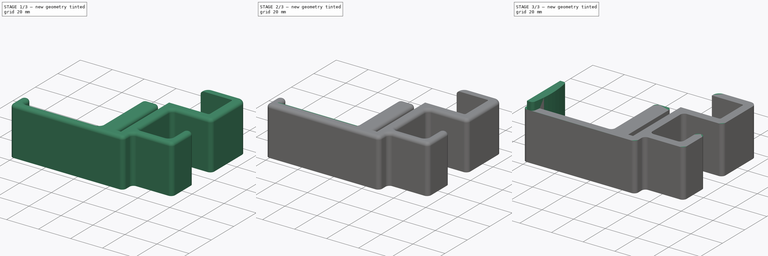
[diagram: build sequence overview — one tinted view per stage of 3, left to right]
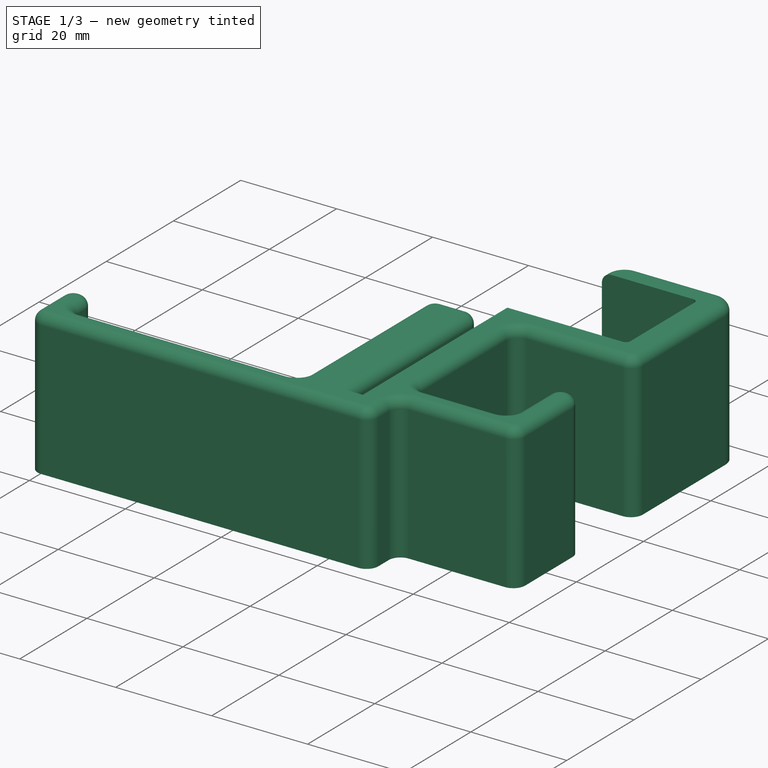
[diagram: stage 1 of 3 — iso view after this stage's code; geometry added in this stage tinted green]
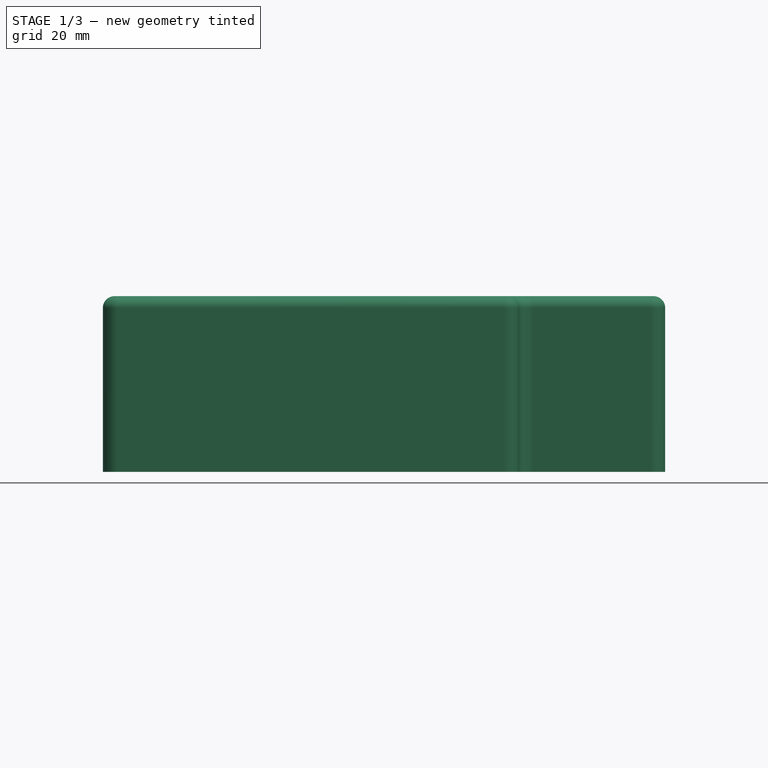
[diagram: stage 1 of 3 — front view after this stage's code; geometry added in this stage tinted green]
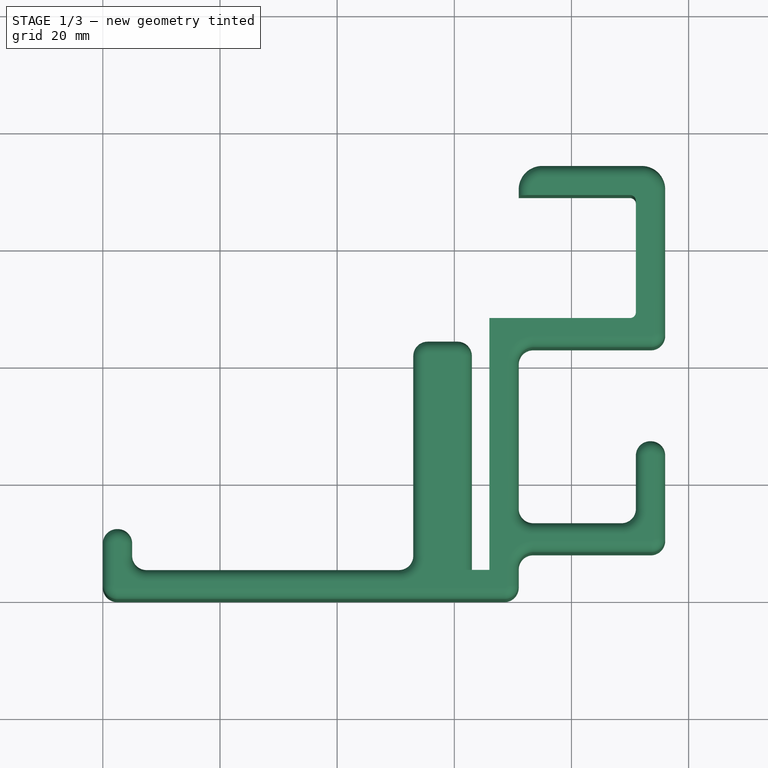
[diagram: stage 1 of 3 — top view after this stage's code; geometry added in this stage tinted green]
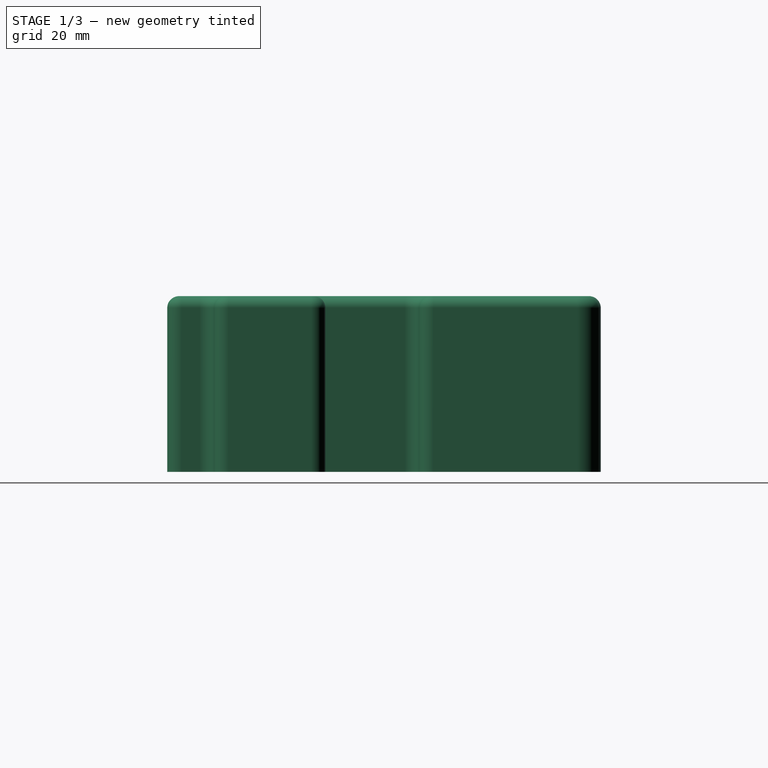
[diagram: stage 1 of 3 — right view after this stage's code; geometry added in this stage tinted green]
FCSTD DOCUMENT  (FreeCAD 0.19R24276 (Git))
Label: fully_jarvis_headphone_hook_bfs
License: All rights reserved
LicenseURL: http://en.wikipedia.org/wiki/All_rights_reserved
objects: PartDesign::Fillet×4, Sketcher::SketchObject×3, PartDesign::Pad×3, App::MeasureDistance×2, PartDesign::Body×1
note: 18 computed .brp shape members not serialized (recipe doc carries the construction recipe); baked Part::Feature solids carry a one-line shape summary decoded from their .brp

FEATURE [Sketcher::SketchObject] Sketch
  FullyConstrained = true
  MapMode = 5
  Support = -> [XY_Plane]
  sketch-geometry (44):
    g0: LineSegment StartX=71 StartY=69 StartZ=0 EndX=90 EndY=69 EndZ=0
    g1: LineSegment StartX=91 StartY=68 StartZ=0 EndX=91 EndY=49 EndZ=0
    g2: LineSegment StartX=90 StartY=48 StartZ=0 EndX=66 EndY=48 EndZ=0
    g3: LineSegment StartX=66 StartY=48 StartZ=0 EndX=66 EndY=5 EndZ=0
    g4: LineSegment StartX=50.55 StartY=5 StartZ=0 EndX=7.45 EndY=5 EndZ=0
    g5: LineSegment StartX=0 StartY=9.55 StartZ=0 EndX=0 EndY=2.45 EndZ=0
    g6: LineSegment StartX=2.45 StartY=0 StartZ=0 EndX=68.55 EndY=0 EndZ=0
    g7: LineSegment StartX=71 StartY=2.45 StartZ=0 EndX=71 EndY=5.55 EndZ=0
    g8: LineSegment StartX=73.45 StartY=8 StartZ=0 EndX=93.55 EndY=8 EndZ=0
    g9: LineSegment StartX=96 StartY=10.45 StartZ=0 EndX=96 EndY=24.55 EndZ=0
    g10: LineSegment StartX=88.55 StartY=13 StartZ=0 EndX=73.45 EndY=13 EndZ=0
    g11: LineSegment StartX=71 StartY=15.45 StartZ=0 EndX=71 EndY=40.55 EndZ=0
    g12: LineSegment StartX=73.45 StartY=43 StartZ=0 EndX=93.55 EndY=43 EndZ=0
    g13: LineSegment StartX=96 StartY=45.45 StartZ=0 EndX=96 EndY=70 EndZ=0
    g14: LineSegment StartX=92 StartY=74 StartZ=0 EndX=75 EndY=74 EndZ=0
    g15: LineSegment StartX=71 StartY=70 StartZ=0 EndX=71 EndY=69 EndZ=0
    g16: LineSegment StartX=5 StartY=7.45 StartZ=0 EndX=5 EndY=9.55 EndZ=0
    g17: LineSegment StartX=91 StartY=15.45 StartZ=0 EndX=91 EndY=24.55 EndZ=0
    g18: LineSegment StartX=93.45 StartY=27 StartZ=0 EndX=93.55 EndY=27 EndZ=0
    g19: LineSegment StartX=63 StartY=5 StartZ=0 EndX=63 EndY=41.55 EndZ=0
    g20: LineSegment StartX=60.55 StartY=44 StartZ=0 EndX=55.45 EndY=44 EndZ=0
    g21: LineSegment StartX=53 StartY=41.55 StartZ=0 EndX=53 EndY=7.45 EndZ=0
    g22: LineSegment StartX=63 StartY=5 StartZ=0 EndX=66 EndY=5 EndZ=0
    g23: ArcOfCircle CenterX=68.55 CenterY=2.45 CenterZ=0 NormalX=0 NormalY=0 NormalZ=1 AngleXU=0 Radius=2.45 StartAngle=4.71239 EndAngle=6.28319
    g24: ArcOfCircle CenterX=2.45 CenterY=2.45 CenterZ=0 NormalX=0 NormalY=0 NormalZ=1 AngleXU=0 Radius=2.45 StartAngle=3.14159 EndAngle=4.71239
    g25: ArcOfCircle CenterX=7.45 CenterY=7.45 CenterZ=0 NormalX=0 NormalY=0 NormalZ=1 AngleXU=0 Radius=2.45 StartAngle=3.14159 EndAngle=4.71239
    g26: ArcOfCircle CenterX=50.55 CenterY=7.45 CenterZ=0 NormalX=0 NormalY=0 NormalZ=1 AngleXU=0 Radius=2.45 StartAngle=4.71239 EndAngle=6.28319
    g27: ArcOfCircle CenterX=55.45 CenterY=41.55 CenterZ=0 NormalX=0 NormalY=0 NormalZ=1 AngleXU=0 Radius=2.45 StartAngle=1.5708 EndAngle=3.14159
    g28: ArcOfCircle CenterX=75 CenterY=70 CenterZ=0 NormalX=0 NormalY=0 NormalZ=1 AngleXU=0 Radius=4 StartAngle=1.5708 EndAngle=3.14159
    g29: ArcOfCircle CenterX=92 CenterY=70 CenterZ=0 NormalX=0 NormalY=0 NormalZ=1 AngleXU=0 Radius=4 StartAngle=1e-15 EndAngle=1.5708
    g30: ArcOfCircle CenterX=93.55 CenterY=45.45 CenterZ=0 NormalX=0 NormalY=0 NormalZ=1 AngleXU=0 Radius=2.45 StartAngle=4.71239 EndAngle=6.28319
    g31: ArcOfCircle CenterX=73.45 CenterY=40.55 CenterZ=0 NormalX=0 NormalY=0 NormalZ=1 AngleXU=0 Radius=2.45 StartAngle=1.5708 EndAngle=3.14159
    g32: ArcOfCircle CenterX=73.45 CenterY=15.45 CenterZ=0 NormalX=0 NormalY=0 NormalZ=1 AngleXU=0 Radius=2.45 StartAngle=3.14159 EndAngle=4.71239
    g33: ArcOfCircle CenterX=88.55 CenterY=15.45 CenterZ=0 NormalX=0 NormalY=0 NormalZ=1 AngleXU=0 Radius=2.45 StartAngle=4.71239 EndAngle=6.28319
    g34: ArcOfCircle CenterX=93.45 CenterY=24.55 CenterZ=0 NormalX=0 NormalY=0 NormalZ=1 AngleXU=0 Radius=2.45 StartAngle=1.5708 EndAngle=3.14159
    g35: ArcOfCircle CenterX=93.55 CenterY=24.55 CenterZ=0 NormalX=0 NormalY=0 NormalZ=1 AngleXU=0 Radius=2.45 StartAngle=2e-16 EndAngle=1.5708
    g36: ArcOfCircle CenterX=93.55 CenterY=10.45 CenterZ=0 NormalX=0 NormalY=0 NormalZ=1 AngleXU=0 Radius=2.45 StartAngle=4.71239 EndAngle=6.28319
    g37: ArcOfCircle CenterX=73.45 CenterY=5.55 CenterZ=0 NormalX=0 NormalY=0 NormalZ=1 AngleXU=0 Radius=2.45 StartAngle=1.5708 EndAngle=3.14159
    g38: LineSegment StartX=2.45 StartY=12 StartZ=0 EndX=2.55 EndY=12 EndZ=0
    g39: ArcOfCircle CenterX=60.55 CenterY=41.55 CenterZ=0 NormalX=0 NormalY=0 NormalZ=1 AngleXU=0 Radius=2.45 StartAngle=0 EndAngle=1.5708
    g40: ArcOfCircle CenterX=2.45 CenterY=9.55 CenterZ=0 NormalX=0 NormalY=0 NormalZ=1 AngleXU=0 Radius=2.45 StartAngle=1.5708 EndAngle=3.14159
    g41: ArcOfCircle CenterX=2.55 CenterY=9.55 CenterZ=0 NormalX=0 NormalY=0 NormalZ=1 AngleXU=0 Radius=2.45 StartAngle=0 EndAngle=1.5708
    g42: ArcOfCircle CenterX=90 CenterY=68 CenterZ=0 NormalX=0 NormalY=0 NormalZ=1 AngleXU=0 Radius=1 StartAngle=1.6e-15 EndAngle=1.5708
    g43: ArcOfCircle CenterX=90 CenterY=49 CenterZ=0 NormalX=0 NormalY=0 NormalZ=1 AngleXU=0 Radius=1 StartAngle=4.71239 EndAngle=6.28319
  constraints (112):
    c: Horizontal(g14)
    c: Horizontal(g0)
    c: Horizontal(g2)
    c: Horizontal(g12)
    c: Horizontal(g10)
    c: Horizontal(g8)
    c: Horizontal(g4)
    c: Horizontal(g6)
    c: Vertical(g5)
    c: Vertical(g16)
    c: Vertical(g3)
    c: Vertical(g9)
    c: Vertical(g11)
    c: Vertical(g1)
    c: Vertical(g13)
    c: Vertical(g15)
    c: Coincident(g15,g0)
    c: Coincident(g3,g2)
    c: Horizontal(g18)
    c: Vertical(g17)
    c: Vertical(g21)
    c: Vertical(g19)
    c: Horizontal(g20)
    c: Vertical(g7)
    c: Horizontal(g22)
    c: Coincident(g22,g19)
    c: Coincident(g22,g3)
    c: DistanceX(g22,g22) = 3
    c: DistanceY(g3,g3) = 43
    c: Tangent(g7,g23) = -1.5708
    c: Tangent(g6,g23) = -1.5708
    c: Tangent(g5,g24) = -1.5708
    c: Tangent(g6,g24) = -1.5708
    c: Tangent(g16,g25) = 1.5708
    c: Tangent(g4,g25) = 1.5708
    c: Tangent(g4,g26) = 1.5708
    c: Tangent(g21,g26) = 1.5708
    c: Tangent(g21,g27) = -1.5708
    c: Tangent(g20,g27) = -1.5708
    c: Tangent(g15,g28) = -1.5708
    c: Tangent(g14,g28) = -1.5708
    c: Tangent(g14,g29) = -1.5708
    c: Tangent(g13,g29) = -1.5708
    c: Tangent(g13,g30) = -1.5708
    c: Tangent(g12,g30) = -1.5708
    c: Tangent(g12,g31) = 1.5708
    c: Tangent(g11,g31) = 1.5708
    c: Tangent(g11,g32) = 1.5708
    c: Tangent(g10,g32) = 1.5708
    c: Tangent(g10,g33) = 1.5708
    c: Tangent(g17,g33) = -1.5708
    c: Tangent(g17,g34) = 1.5708
    c: Tangent(g18,g34) = 1.5708
    c: Tangent(g18,g35) = 1.5708
    c: Tangent(g9,g35) = -1.5708
    c: Tangent(g9,g36) = -1.5708
    c: Tangent(g8,g36) = -1.5708
    c: Tangent(g8,g37) = 1.5708
    c: Tangent(g7,g37) = 1.5708
    c: DistanceY(g6,g-1) = 0
    c: DistanceX(g5,g-1) = 0
    c: Radius(g24) = 2.45
    c: Equal(g24,g25)
    c: Equal(g24,g26)
    c: Equal(g24,g27)
    c: Equal(g24,g23)
    c: Equal(g24,g37)
    c: Equal(g24,g36)
    c: Equal(g24,g35)
    c: Equal(g24,g33)
    c: Equal(g24,g32)
    c: Equal(g24,g34)
    c: Equal(g24,g31)
    c: Equal(g24,g30)
    c: Radius(g28) = 4
    c: Equal(g28,g29)
    c: Tangent(g20,g39) = -1.5708
    c: Tangent(g19,g39) = -1.5708
    c: Equal(g27,g39)
    c: DistanceY(g20,g2) = 4
    c: Tangent(g5,g40) = -1.5708
    c: Tangent(g38,g40) = 1.5708
    c: Tangent(g38,g41) = 1.5708
    c: Tangent(g16,g41) = -1.5708
    c: Equal(g24,g40)
    c: Equal(g24,g41)
    c: Horizontal(g38)
    c: DistanceX(g5,g16) = 5
    c: DistanceY(g4,g38) = 7
    c: DistanceY(g6,g4) = 5
    c: DistanceX(g21,g19) = 10
    c: Tangent(g0,g42) = 1.5708
    c: Tangent(g1,g42) = 1.5708
    c: Tangent(g1,g43) = 1.5708
    c: Tangent(g2,g43) = 1.5708
    c: Radius(g42) = 1
    c: Equal(g42,g43)
    c: DistanceY(g0,g14) = 5
    c: DistanceX(g1,g13) = 5
    c: DistanceY(g12,g2) = 5
    c: DistanceX(g2,g11) = 5
    c: DistanceY(g8,g10) = 5
    c: DistanceX(g3,g7) = 5
    c: DistanceX(g17,g9) = 5
    c: DistanceY(g6,g3) = 5
    c: DistanceX(g16,g21) = 48
    c: DistanceY(g2,g0) = 21
    c: DistanceX(g2,g1) = 25
    c: DistanceX(g0,g1) = 20
    c: DistanceX(g11,g17) = 20
    c: DistanceY(g10,g18) = 14
    c: DistanceY(g6,g8) = 8
FEATURE [PartDesign::Pad] Pad  label="Main"
  AllowMultiFace = false
  Direction = (1,1,1)
  Length = 30
  Length2 = 100
  Profile = -> Sketch
  Type = 0
FEATURE [PartDesign::Fillet] Fillet002
  Base = -> Pad [Edge16]
  BaseFeature = -> Pad
  Radius = 2
  SupportTransform = false
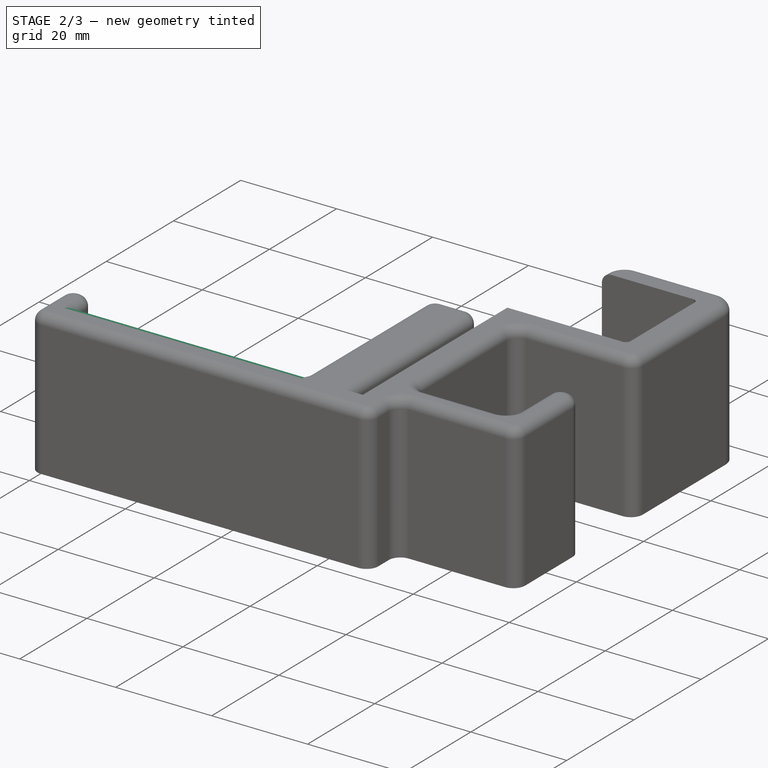
[diagram: stage 2 of 3 — iso view after this stage's code; geometry added in this stage tinted green]
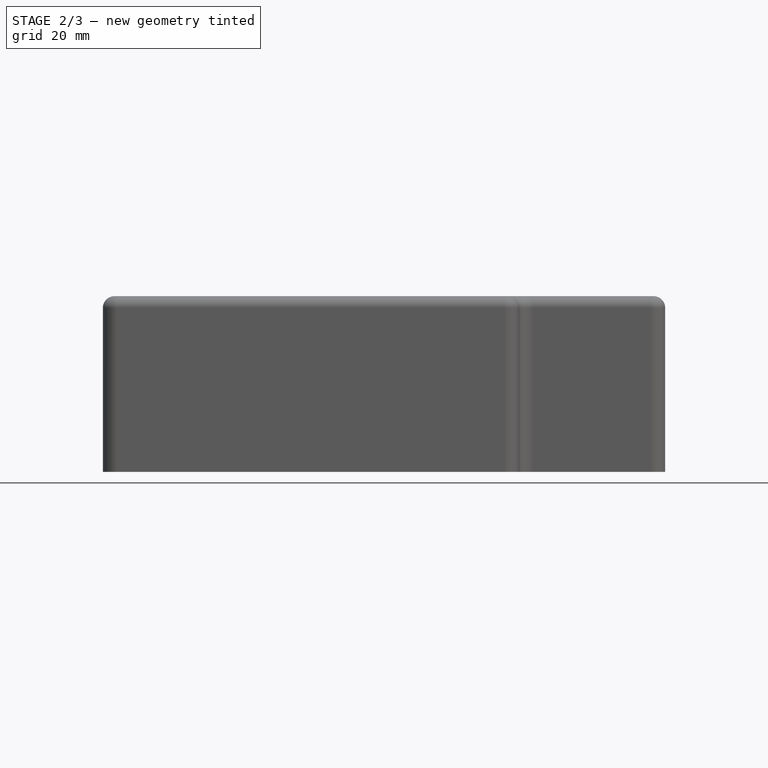
[diagram: stage 2 of 3 — front view after this stage's code; geometry added in this stage tinted green]
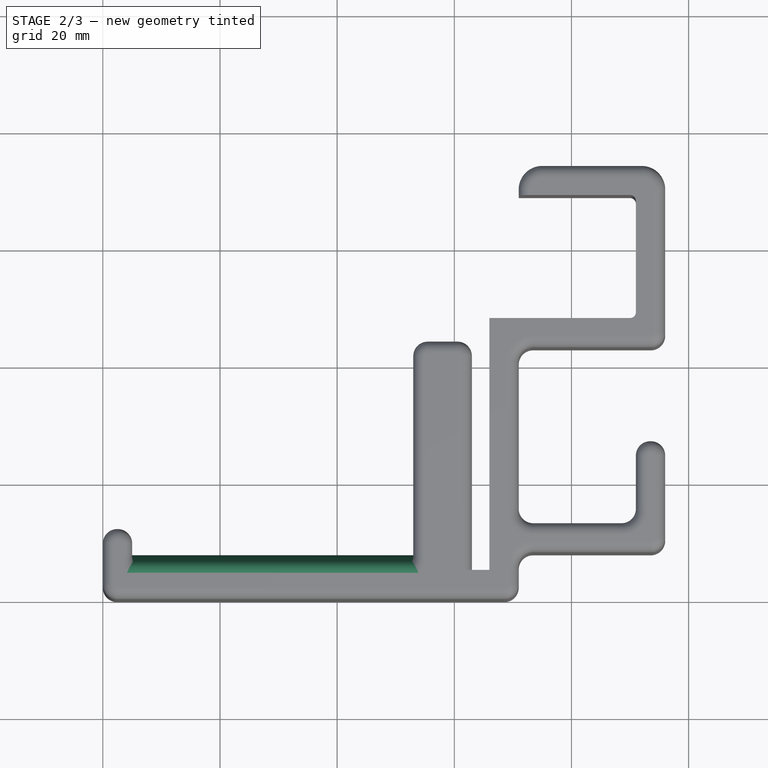
[diagram: stage 2 of 3 — top view after this stage's code; geometry added in this stage tinted green]
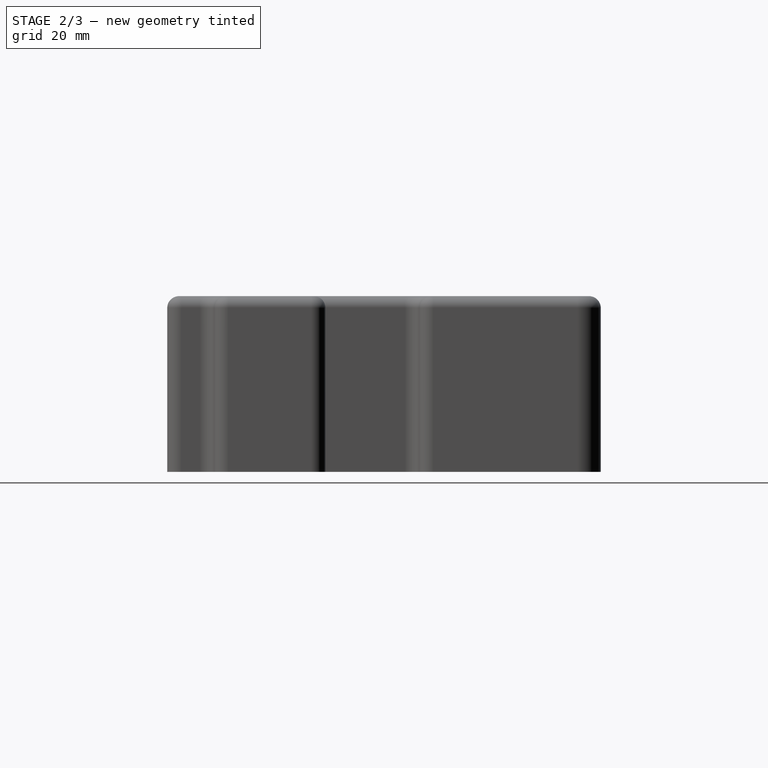
[diagram: stage 2 of 3 — right view after this stage's code; geometry added in this stage tinted green]
FEATURE [PartDesign::Fillet] Fillet003
  Base = -> Fillet002 [Edge14]
  BaseFeature = -> Fillet002
  Radius = 2
  SupportTransform = false
FEATURE [PartDesign::Fillet] Fillet
  Base = -> Pad [Edge10]
  BaseFeature = -> Pad
  Radius = 2
  SupportTransform = false
FEATURE [Sketcher::SketchObject] Sketch002
  FullyConstrained = true
  Placement = pos=(4,0,0) rot=(0.57735,0.57735,0.57735;2.0944rad)
  sketch-geometry (6):
    g0: ArcOfCircle CenterX=-62.2458 CenterY=15 CenterZ=0 NormalX=0 NormalY=0 NormalZ=1 AngleXU=0 Radius=70 StartAngle=6.09082 EndAngle=6.47555
    g1: LineSegment StartX=4.5 StartY=30 StartZ=0 EndX=2.5 EndY=30 EndZ=0
    g2: LineSegment StartX=2.5 StartY=30 StartZ=0 EndX=2.5 EndY=0 EndZ=0
    g3: LineSegment StartX=2.5 StartY=0 StartZ=0 EndX=4.5 EndY=0 EndZ=0
    g4: ArcOfCircle CenterX=4.5 CenterY=28 CenterZ=0 NormalX=0 NormalY=0 NormalZ=1 AngleXU=0 Radius=2 StartAngle=0.192361 EndAngle=1.5708
    g5: ArcOfCircle CenterX=4.5 CenterY=2 CenterZ=0 NormalX=0 NormalY=0 NormalZ=1 AngleXU=0 Radius=2 StartAngle=4.71239 EndAngle=6.09082
  constraints (17):
    c: Radius(g0) = 70
    c: Vertical(g2)
    c: Horizontal(g1)
    c: Coincident(g2,g1)
    c: Coincident(g3,g2)
    c: DistanceX(g-1,g2) = 2.5
    c: Distance(g2) = 30
    c: Tangent(g0,g4) = -1.5708
    c: Tangent(g1,g4) = -1.5708
    c: Tangent(g0,g5) = -1.5708
    c: Tangent(g3,g5) = -1.5708
    c: Equal(g5,g4)
    c: Radius(g4) = 2
    c: Distance(g1) = 2
    c: Equal(g3,g1)
    c: Parallel(g3,g1)
    c: DistanceY(g-1,g2) = 0
FEATURE [PartDesign::Pad] Pad002
  AllowMultiFace = false
  BaseFeature = -> Fillet003
  Direction = (1,1,1)
  Length = 50
  Length2 = 100
  Profile = -> Sketch002
  Type = 0
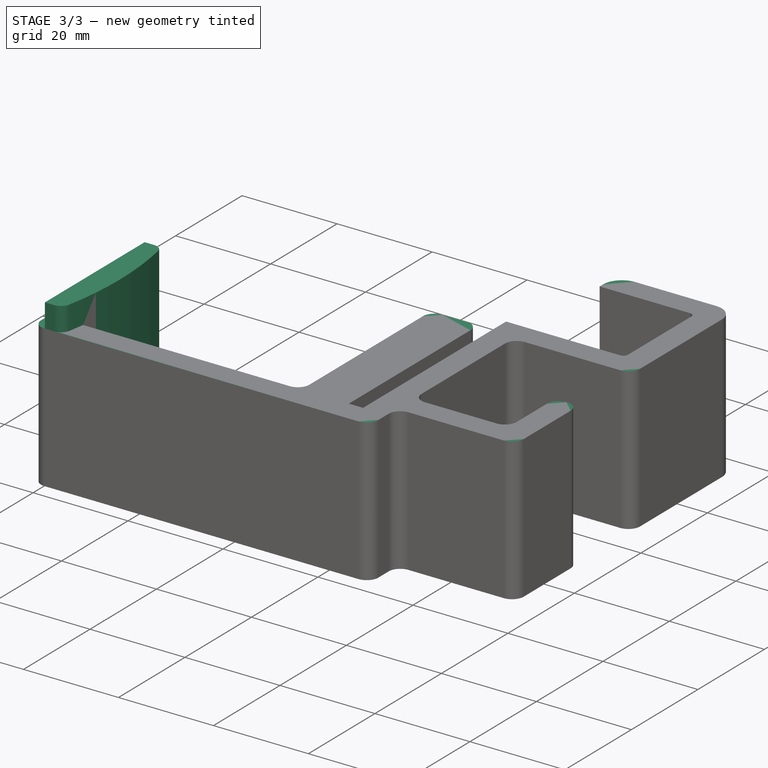
[diagram: stage 3 of 3 — iso view after this stage's code; geometry added in this stage tinted green]
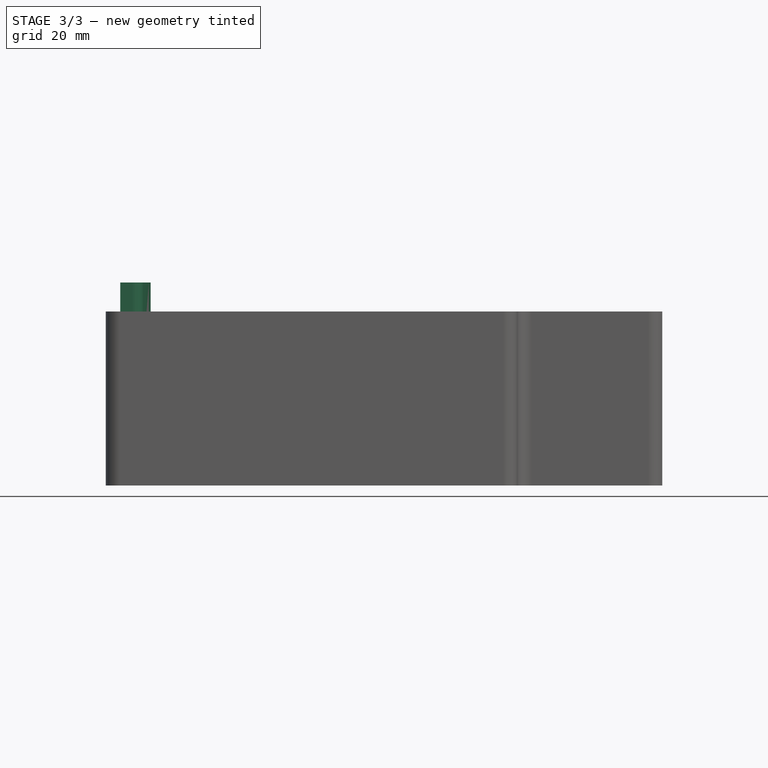
[diagram: stage 3 of 3 — front view after this stage's code; geometry added in this stage tinted green]
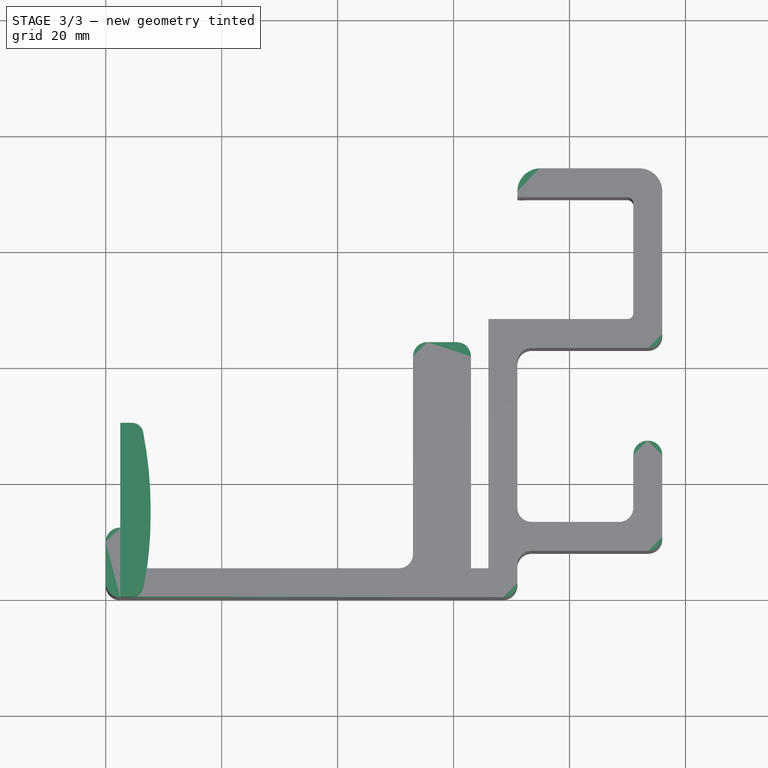
[diagram: stage 3 of 3 — top view after this stage's code; geometry added in this stage tinted green]
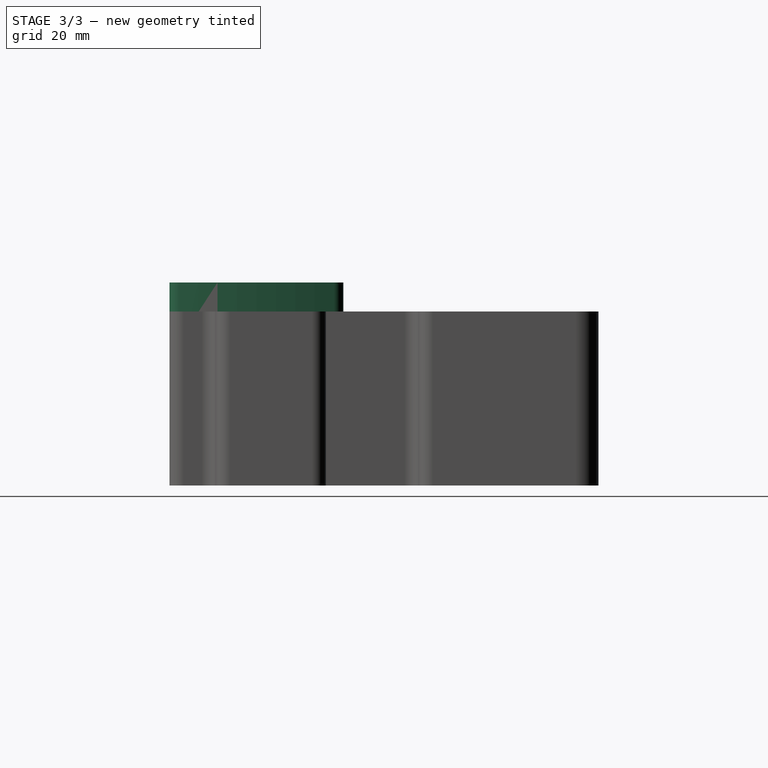
[diagram: stage 3 of 3 — right view after this stage's code; geometry added in this stage tinted green]
FEATURE [PartDesign::Fillet] Fillet001
  Base = -> Fillet [Face4]
  BaseFeature = -> Fillet
  Radius = 2
  SupportTransform = false
FEATURE [Sketcher::SketchObject] Sketch001
  FullyConstrained = true
  MapMode = 45
  Support = -> [Pad002,Sketch002]
  sketch-geometry (6):
    g0: ArcOfCircle CenterX=-62.2458 CenterY=15 CenterZ=0 NormalX=0 NormalY=0 NormalZ=1 AngleXU=0 Radius=70 StartAngle=6.09082 EndAngle=6.47555
    g1: LineSegment StartX=4.5 StartY=30 StartZ=0 EndX=2.5 EndY=30 EndZ=0
    g2: LineSegment StartX=2.5 StartY=30 StartZ=0 EndX=2.5 EndY=0 EndZ=0
    g3: LineSegment StartX=2.5 StartY=0 StartZ=0 EndX=4.5 EndY=0 EndZ=0
    g4: ArcOfCircle CenterX=4.5 CenterY=28 CenterZ=0 NormalX=0 NormalY=0 NormalZ=1 AngleXU=0 Radius=2 StartAngle=0.192361 EndAngle=1.5708
    g5: ArcOfCircle CenterX=4.5 CenterY=2 CenterZ=0 NormalX=0 NormalY=0 NormalZ=1 AngleXU=0 Radius=2 StartAngle=4.71239 EndAngle=6.09082
  constraints (17):
    c: Radius(g0) = 70
    c: Vertical(g2)
    c: Horizontal(g1)
    c: Coincident(g2,g1)
    c: Coincident(g3,g2)
    c: DistanceX(g-1,g2) = 2.5
    c: Distance(g2) = 30
    c: Tangent(g0,g4) = -1.5708
    c: Tangent(g1,g4) = -1.5708
    c: Tangent(g0,g5) = -1.5708
    c: Tangent(g3,g5) = -1.5708
    c: Equal(g5,g4)
    c: Radius(g4) = 2
    c: Distance(g1) = 2
    c: Equal(g3,g1)
    c: Parallel(g3,g1)
    c: DistanceY(g-1,g2) = 0
FEATURE [PartDesign::Pad] Pad001  label="LowerCurve"
  AllowMultiFace = false
  BaseFeature = -> Pad
  Direction = (1,1,1)
  Length = 35
  Length2 = 100
  Profile = -> Sketch001
  Type = 0
FEATURE [PartDesign::Body] Body
  Group = -> [Sketch,Pad,Sketch001,Pad001,Fillet,Fillet001,Fillet002,Fillet003,Sketch002,Pad002]
  Origin = -> Origin
  Tip = -> Pad002
FEATURE [App::MeasureDistance] Distance  label="Distance: 65.70 mm"
  Distance = 65.6989
  P1 = (3.16183,0,9.88286)
  P2 = (68.55,-4e-16,16.265)
FEATURE [App::MeasureDistance] Distance001  label="Distance: 48.18 mm"
  Distance = 48.1769
  P1 = (5.52081,5.09015,29.9002)
  P2 = (53.6973,4.89822,29.96)
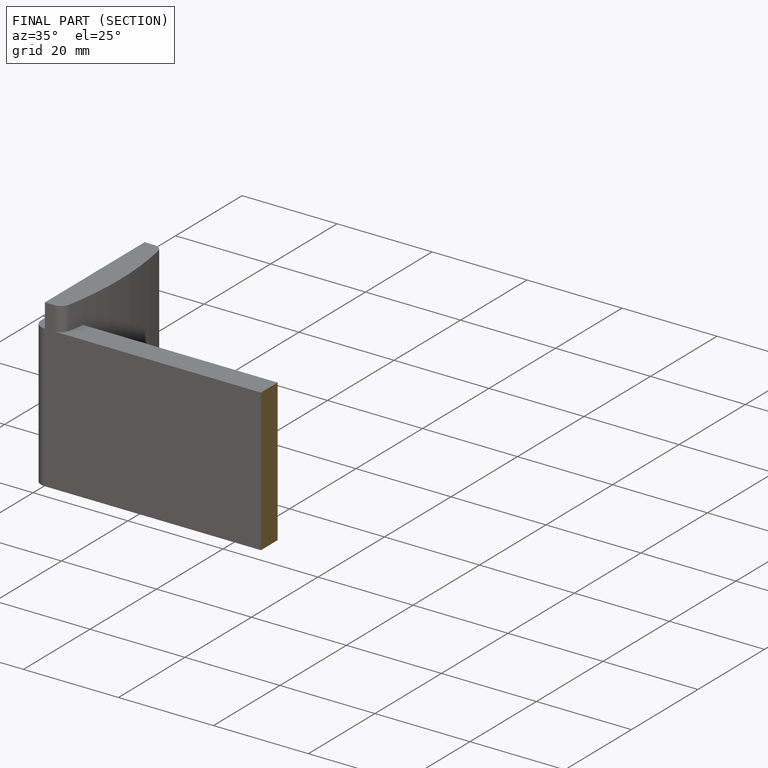
[diagram: finished part — half-section view (interior)]
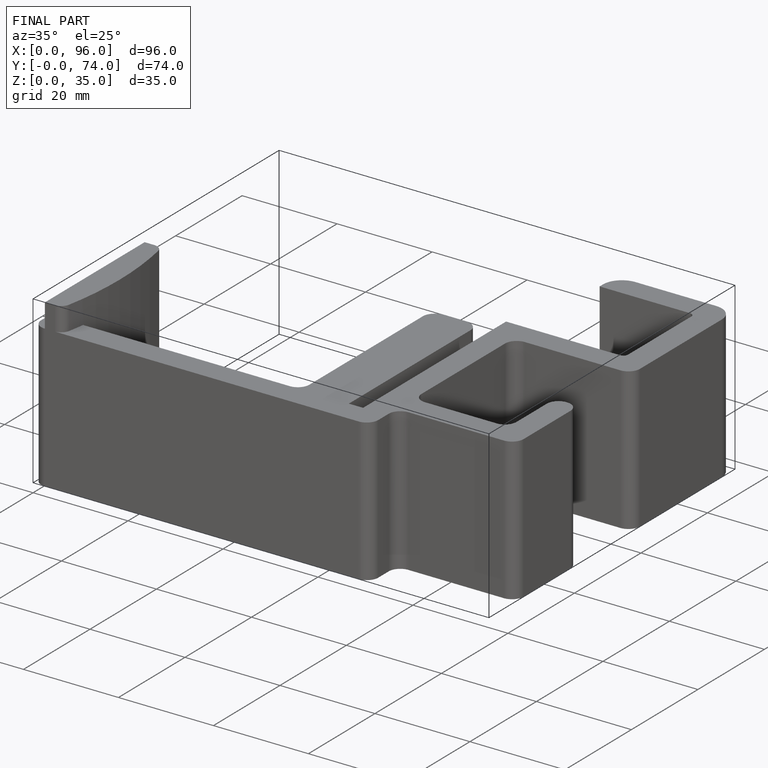
[diagram: finished part — iso view with bounding-box wireframe]
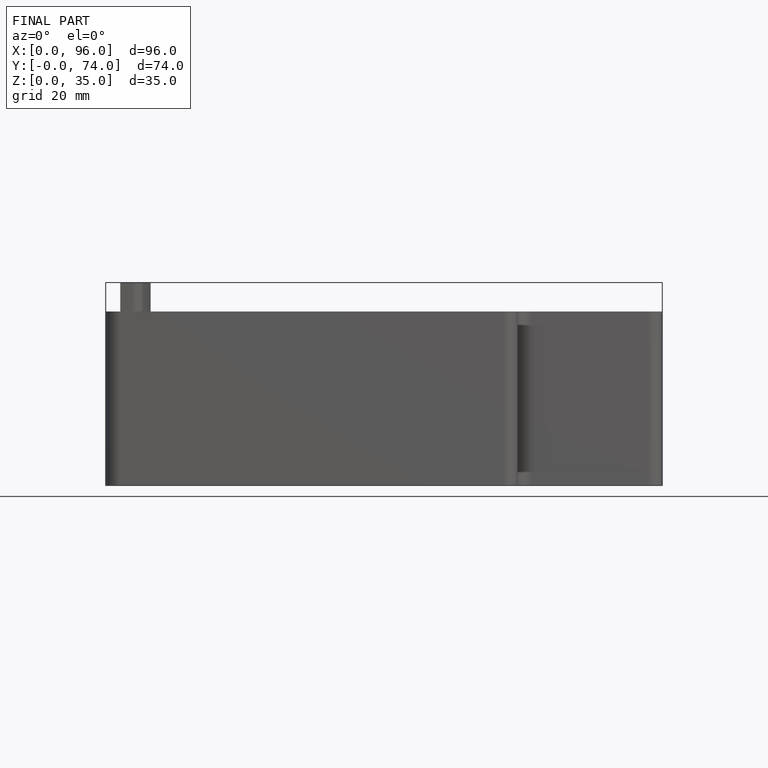
[diagram: finished part — front view with bounding-box wireframe]
